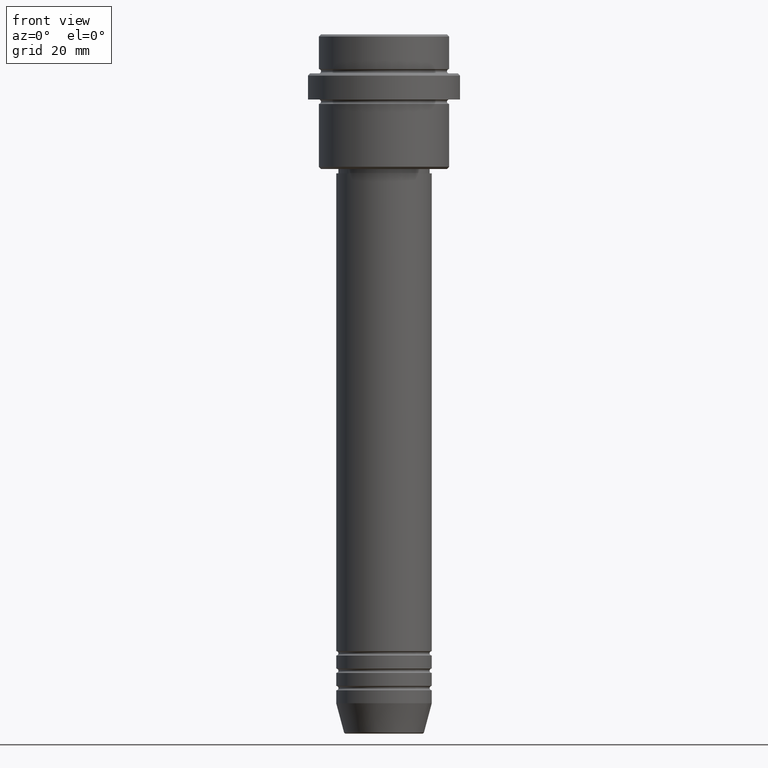
[diagram: clean part render]
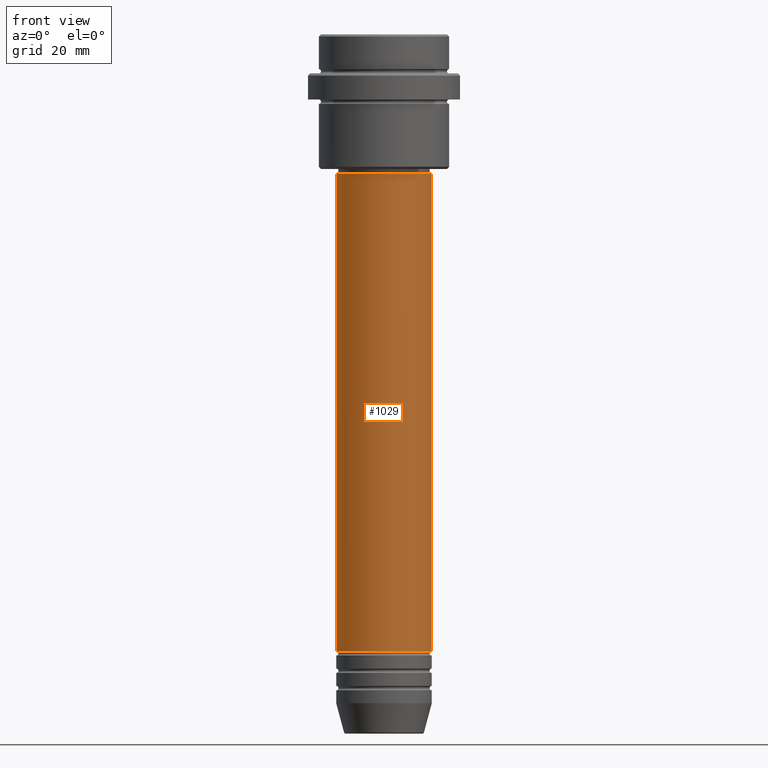
[diagram: same view with one face highlighted and labeled with its STEP entity id]
A machine part, front view. The second image highlights one B-rep face of the part: STEP entity #1029.
In plain terms, the highlighted cylindrical surface (partial cylindrical patch) has radius 11 mm, axis along (-0, -0, 1).
Its self-contained STEP definition (entity closure, byte-faithful):
#1 = CARTESIAN_POINT ( 'NONE',  ( 0.000000000000000000, 0.000000000000000000, -141.9999999999999147 ) ) ;
#8 = CYLINDRICAL_SURFACE ( 'NONE', #245, 11.00000000000000000 ) ;
#24 = DIRECTION ( 'NONE',  ( 1.000000000000000000, 0.000000000000000000, 0.000000000000000000 ) ) ;
#29 = FACE_OUTER_BOUND ( 'NONE', #168, .T. ) ;
#55 = DIRECTION ( 'NONE',  ( -0.000000000000000000, -0.000000000000000000, 1.000000000000000000 ) ) ;
#100 = ORIENTED_EDGE ( 'NONE', *, *, #267, .F. ) ;
#135 = CARTESIAN_POINT ( 'NONE',  ( 0.000000000000000000, 0.000000000000000000, 0.000000000000000000 ) ) ;
#168 = EDGE_LOOP ( 'NONE', ( #557, #468, #1232, #100 ) ) ;
#182 = EDGE_CURVE ( 'NONE', #1163, #1372, #1369, .T. ) ;
#245 = AXIS2_PLACEMENT_3D ( 'NONE', #135, #262, #24 ) ;
#262 = DIRECTION ( 'NONE',  ( -0.000000000000000000, -0.000000000000000000, 1.000000000000000000 ) ) ;
#267 = EDGE_CURVE ( 'NONE', #1372, #1186, #1043, .T. ) ;
#313 = EDGE_CURVE ( 'NONE', #1163, #962, #456, .T. ) ;
#393 = LINE ( 'NONE', #934, #1071 ) ;
#443 = CARTESIAN_POINT ( 'NONE',  ( 11.00000000000000000, 0.000000000000000000, -141.9999999999999147 ) ) ;
#456 = CIRCLE ( 'NONE', #756, 11.00000000000000000 ) ;
#468 = ORIENTED_EDGE ( 'NONE', *, *, #313, .T. ) ;
#471 = EDGE_CURVE ( 'NONE', #962, #1186, #393, .T. ) ;
#527 = CARTESIAN_POINT ( 'NONE',  ( 0.000000000000000000, 0.000000000000000000, -31.99999999999998579 ) ) ;
#557 = ORIENTED_EDGE ( 'NONE', *, *, #182, .F. ) ;
#611 = CARTESIAN_POINT ( 'NONE',  ( -11.00000000000000000, 1.347111479062088405E-15, -141.9999999999999147 ) ) ;
#654 = DIRECTION ( 'NONE',  ( -0.000000000000000000, -0.000000000000000000, 1.000000000000000000 ) ) ;
#710 = CARTESIAN_POINT ( 'NONE',  ( -10.99999999999999822, 1.347111479062088207E-15, -31.99999999999998579 ) ) ;
#756 = AXIS2_PLACEMENT_3D ( 'NONE', #1, #1108, #1413 ) ;
#934 = CARTESIAN_POINT ( 'NONE',  ( 11.00000000000000000, 0.000000000000000000, 0.000000000000000000 ) ) ;
#962 = VERTEX_POINT ( 'NONE', #443 ) ;
#997 = AXIS2_PLACEMENT_3D ( 'NONE', #527, #1256, #1392 ) ;
#1029 = ADVANCED_FACE ( 'NONE', ( #29 ), #8, .T. ) ;
#1041 = CARTESIAN_POINT ( 'NONE',  ( 10.99999999999999822, 0.000000000000000000, -31.99999999999998579 ) ) ;
#1043 = CIRCLE ( 'NONE', #997, 10.99999999999999822 ) ;
#1058 = CARTESIAN_POINT ( 'NONE',  ( -11.00000000000000000, 1.347111479062088405E-15, 0.000000000000000000 ) ) ;
#1071 = VECTOR ( 'NONE', #55, 1000.000000000000000 ) ;
#1108 = DIRECTION ( 'NONE',  ( -0.000000000000000000, -0.000000000000000000, 1.000000000000000000 ) ) ;
#1163 = VERTEX_POINT ( 'NONE', #611 ) ;
#1186 = VERTEX_POINT ( 'NONE', #1041 ) ;
#1232 = ORIENTED_EDGE ( 'NONE', *, *, #471, .T. ) ;
#1256 = DIRECTION ( 'NONE',  ( -0.000000000000000000, -0.000000000000000000, 1.000000000000000000 ) ) ;
#1336 = VECTOR ( 'NONE', #654, 1000.000000000000000 ) ;
#1369 = LINE ( 'NONE', #1058, #1336 ) ;
#1372 = VERTEX_POINT ( 'NONE', #710 ) ;
#1392 = DIRECTION ( 'NONE',  ( 1.000000000000000000, 0.000000000000000000, 0.000000000000000000 ) ) ;
#1413 = DIRECTION ( 'NONE',  ( 1.000000000000000000, 0.000000000000000000, 0.000000000000000000 ) ) ;